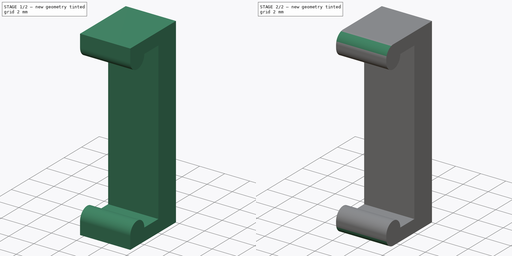
[diagram: build sequence overview — one tinted view per stage of 2, left to right]
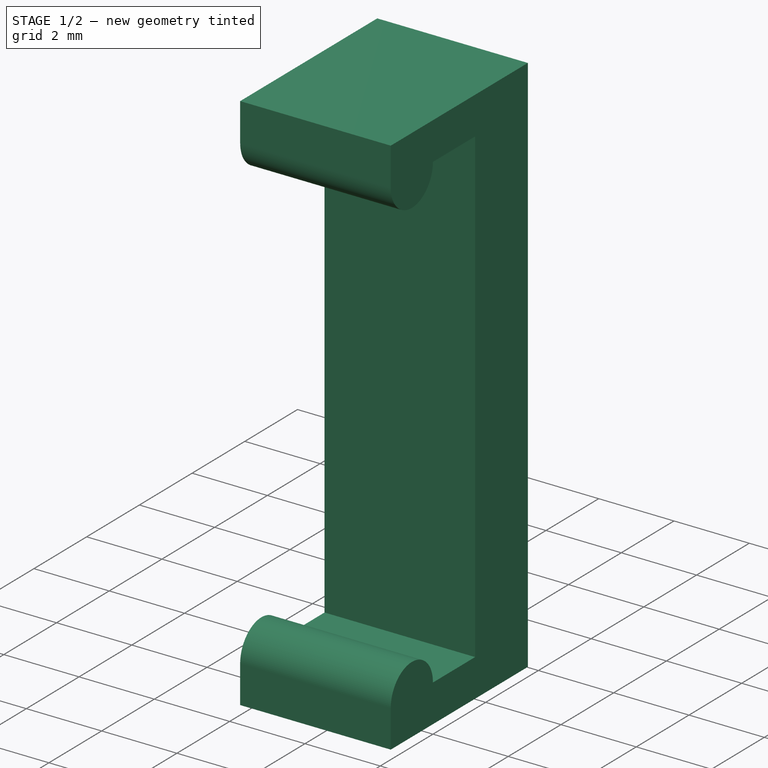
[diagram: stage 1 of 2 — iso view after this stage's code; geometry added in this stage tinted green]
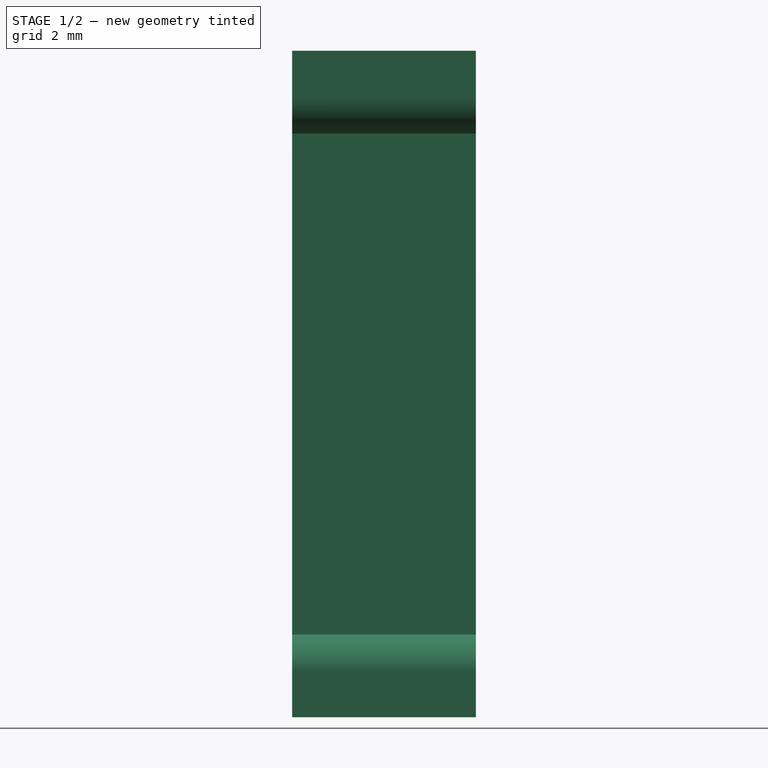
[diagram: stage 1 of 2 — front view after this stage's code; geometry added in this stage tinted green]
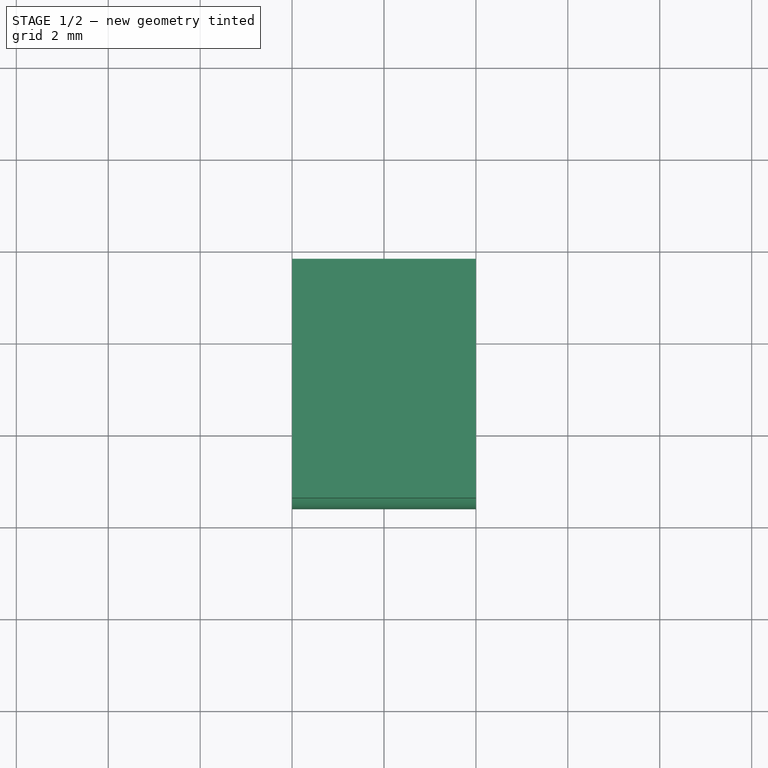
[diagram: stage 1 of 2 — top view after this stage's code; geometry added in this stage tinted green]
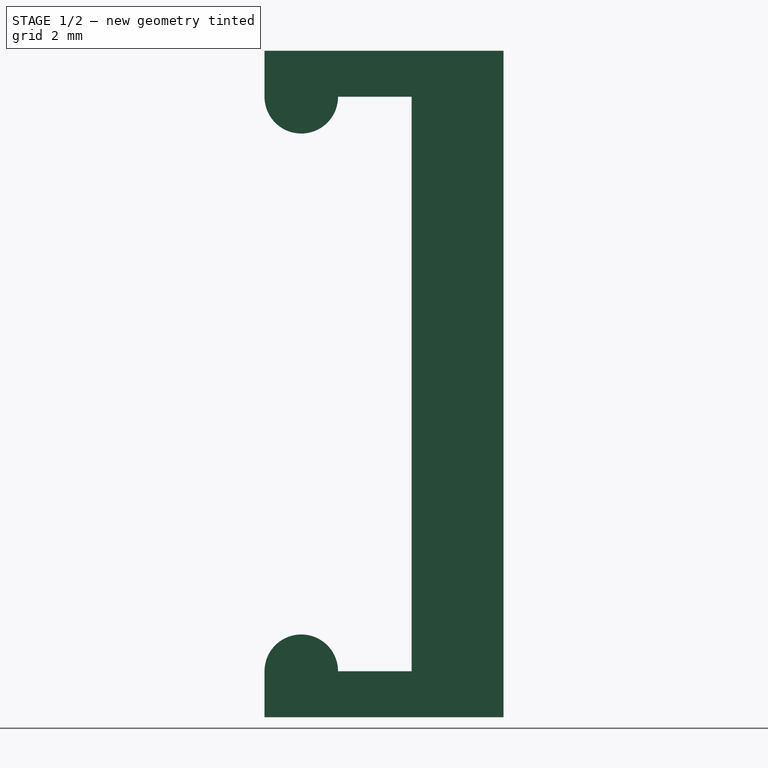
[diagram: stage 1 of 2 — right view after this stage's code; geometry added in this stage tinted green]
FCSTD DOCUMENT  (FreeCAD 0.19R24291 (Git))
Label: OTP20_Display_Bracket
License: Creative Commons Attribution-NonCommercial-ShareAlike
LicenseURL: http://creativecommons.org/licenses/by-nc-sa/4.0/
objects: Sketcher::SketchObject×1, PartDesign::Pad×1, PartDesign::Fillet×1, PartDesign::Body×1
note: 6 computed .brp shape members not serialized (recipe doc carries the construction recipe); baked Part::Feature solids carry a one-line shape summary decoded from their .brp

FEATURE [Sketcher::SketchObject] Sketch
  FullyConstrained = true
  MapMode = 5
  Placement = pos=(0,0,0) rot=(0.57735,0.57735,0.57735;2.0944rad)
  Support = -> [YZ_Plane]
  sketch-geometry (10):
    g0: LineSegment StartX=1.6 StartY=6.25 StartZ=0 EndX=0 EndY=6.25 EndZ=0
    g1: LineSegment StartX=-1.6 StartY=6.25 StartZ=0 EndX=-1.6 EndY=7.25 EndZ=0
    g2: LineSegment StartX=-1.6 StartY=7.25 StartZ=0 EndX=3.6 EndY=7.25 EndZ=0
    g3: LineSegment StartX=3.6 StartY=7.25 StartZ=0 EndX=3.6 EndY=-7.25 EndZ=0
    g4: LineSegment StartX=3.6 StartY=-7.25 StartZ=0 EndX=-1.6 EndY=-7.25 EndZ=0
    g5: LineSegment StartX=-1.6 StartY=-7.25 StartZ=0 EndX=-1.6 EndY=-6.25 EndZ=0
    g6: LineSegment StartX=0 StartY=-6.25 StartZ=0 EndX=1.6 EndY=-6.25 EndZ=0
    g7: LineSegment StartX=1.6 StartY=-6.25 StartZ=0 EndX=1.6 EndY=6.25 EndZ=0
    g8: ArcOfCircle CenterX=-0.8 CenterY=6.25 CenterZ=0 NormalX=0 NormalY=0 NormalZ=1 AngleXU=0 Radius=0.8 StartAngle=3.14159 EndAngle=6.28319
    g9: ArcOfCircle CenterX=-0.8 CenterY=-6.25 CenterZ=0 NormalX=0 NormalY=0 NormalZ=1 AngleXU=0 Radius=0.8 StartAngle=2e-16 EndAngle=3.14159
  constraints (31):
    c: Horizontal(g0)
    c: Vertical(g1)
    c: Coincident(g1,g2)
    c: Horizontal(g2)
    c: Coincident(g2,g3)
    c: Vertical(g3)
    c: Coincident(g3,g4)
    c: Horizontal(g4)
    c: Coincident(g4,g5)
    c: PointOnObject(g6,g-2)
    c: Horizontal(g6)
    c: Coincident(g6,g7)
    c: Coincident(g7,g0)
    c: Vertical(g7)
    c: Coincident(g8,g0)
    c: Coincident(g9,g6)
    c: Vertical(g5)
    c: Horizontal(g8,g8)
    c: Horizontal(g8,g0)
    c: Horizontal(g9,g9)
    c: Horizontal(g9,g6)
    c: Coincident(g1,g8)
    c: Coincident(g5,g9)
    c: Vertical(g1,g5)
    c: Distance(g0) = 1.6
    c: Distance(g7) = 12.5
    c: Symmetric(g6,g0,g-1)
    c: Radius(g8) = 0.8
    c: Distance(g1) = 1
    c: Distance(g0,g3) = 2
    c: Equal(g1,g5)
FEATURE [PartDesign::Pad] Pad
  Direction = (1,1,1)
  Length = 4
  Length2 = 100
  Placement = pos=(0,0,0) rot=(0.57735,0.57735,0.57735;2.0944rad)
  Profile = -> Sketch
  Refine = true
  Type = 0
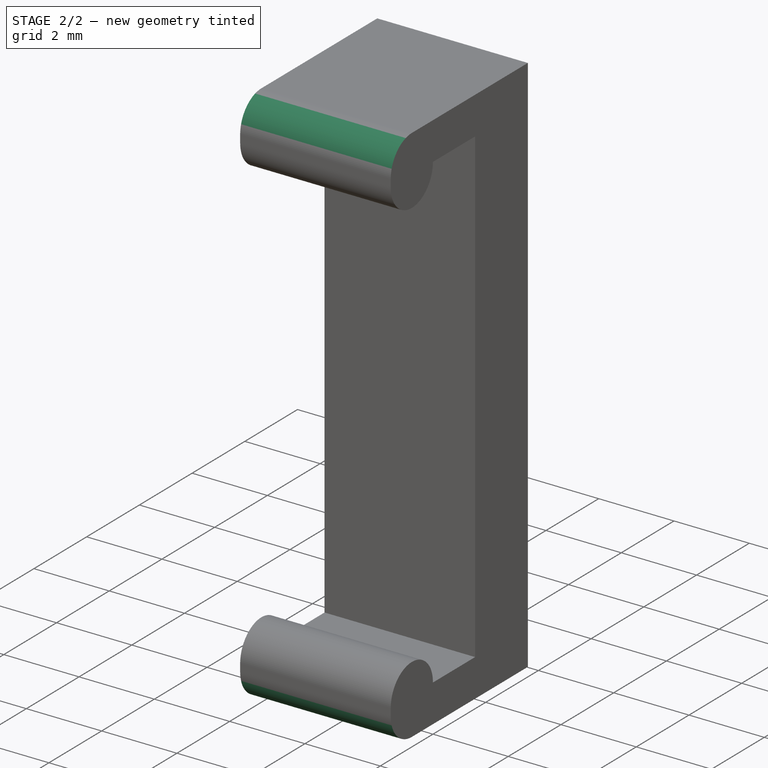
[diagram: stage 2 of 2 — iso view after this stage's code; geometry added in this stage tinted green]
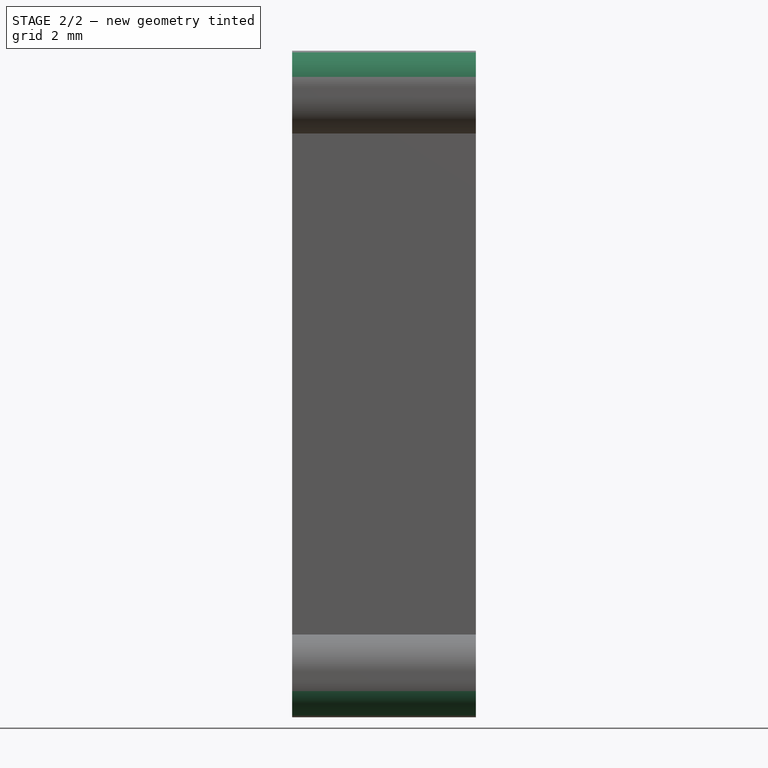
[diagram: stage 2 of 2 — front view after this stage's code; geometry added in this stage tinted green]
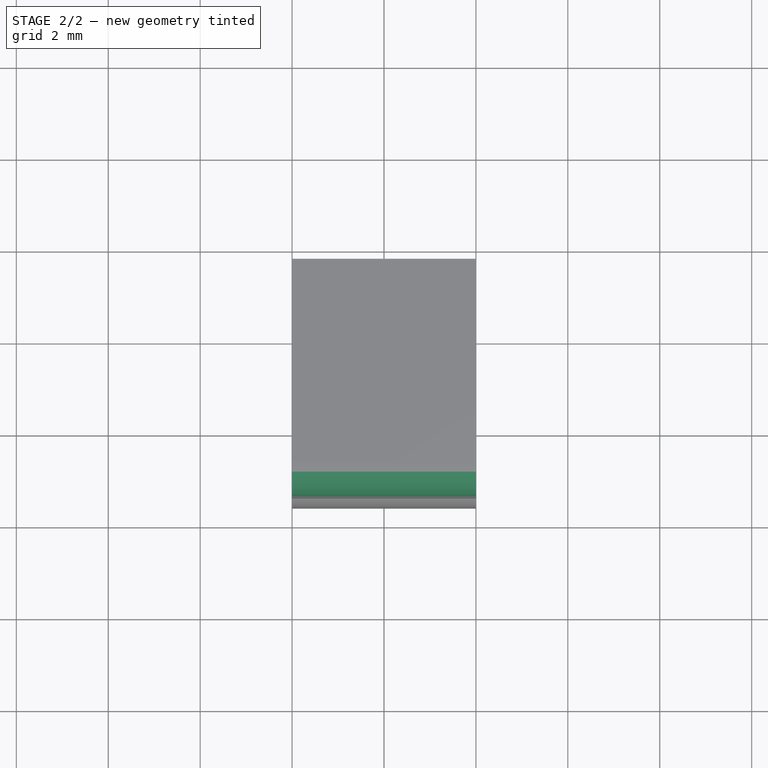
[diagram: stage 2 of 2 — top view after this stage's code; geometry added in this stage tinted green]
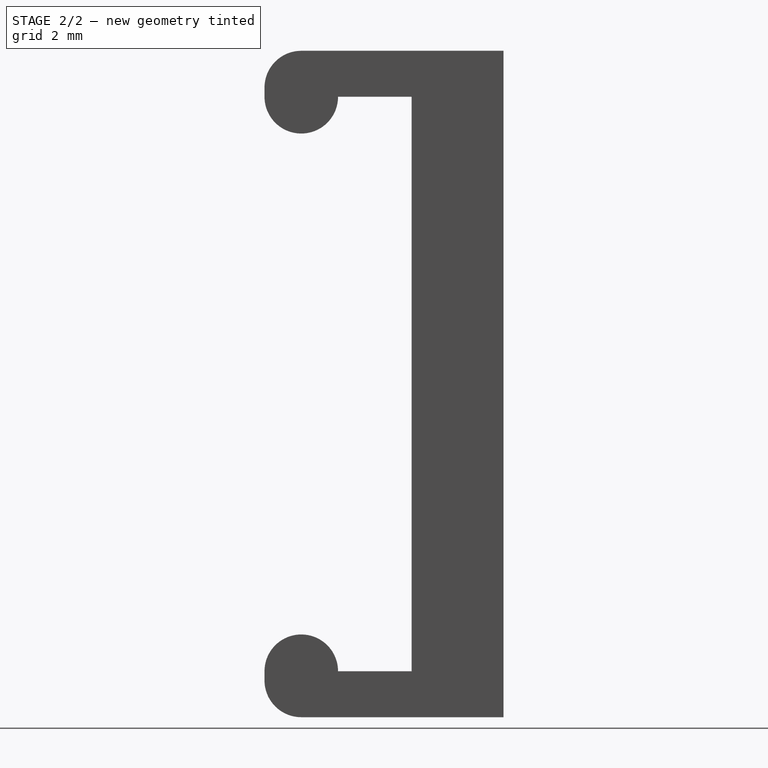
[diagram: stage 2 of 2 — right view after this stage's code; geometry added in this stage tinted green]
FEATURE [PartDesign::Fillet] Fillet
  Base = -> Pad [Edge14,Edge23]
  BaseFeature = -> Pad
  Placement = pos=(0,0,0) rot=(0.57735,0.57735,0.57735;2.0944rad)
  Radius = 0.8
  Refine = true
  SupportTransform = false
FEATURE [PartDesign::Body] Body
  Group = -> [Sketch,Pad,Fillet]
  Origin = -> Origin
  Tip = -> Fillet
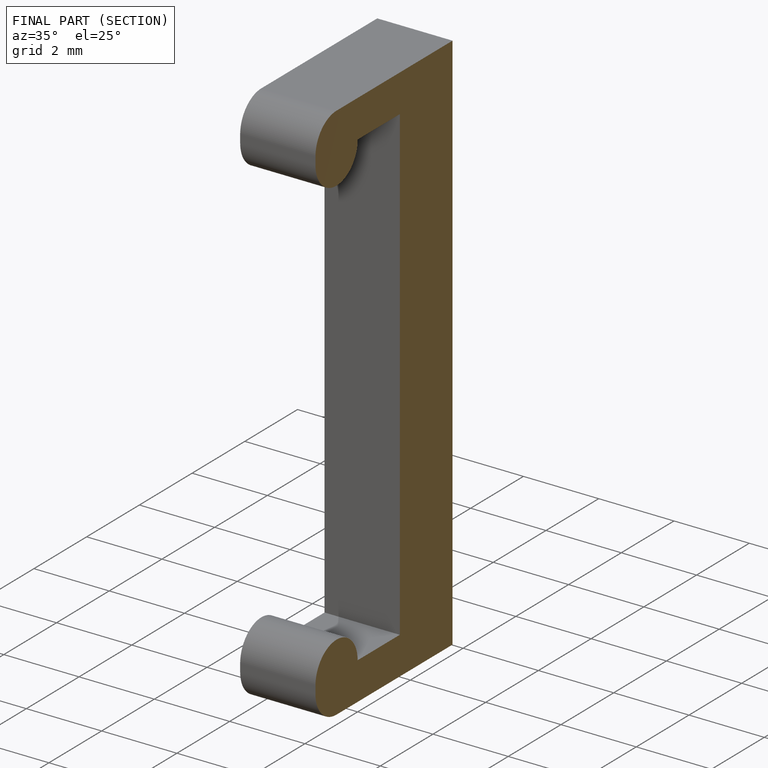
[diagram: finished part — half-section view (interior)]
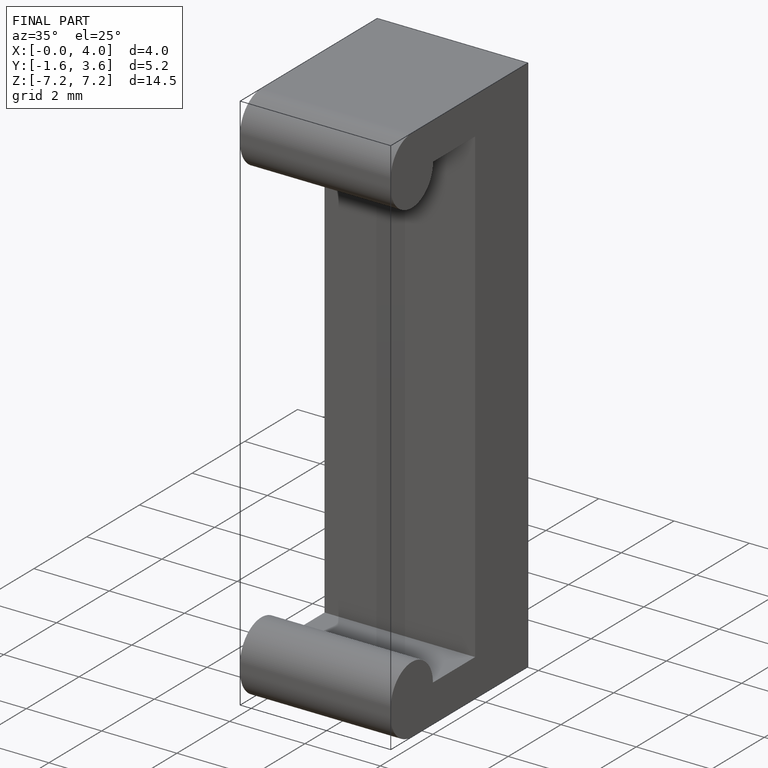
[diagram: finished part — iso view with bounding-box wireframe]
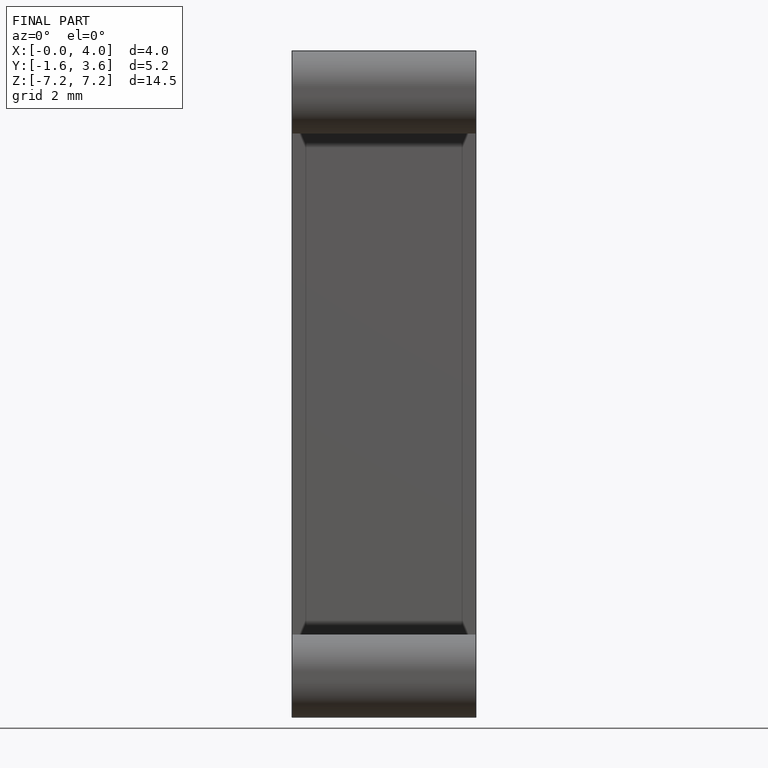
[diagram: finished part — front view with bounding-box wireframe]
